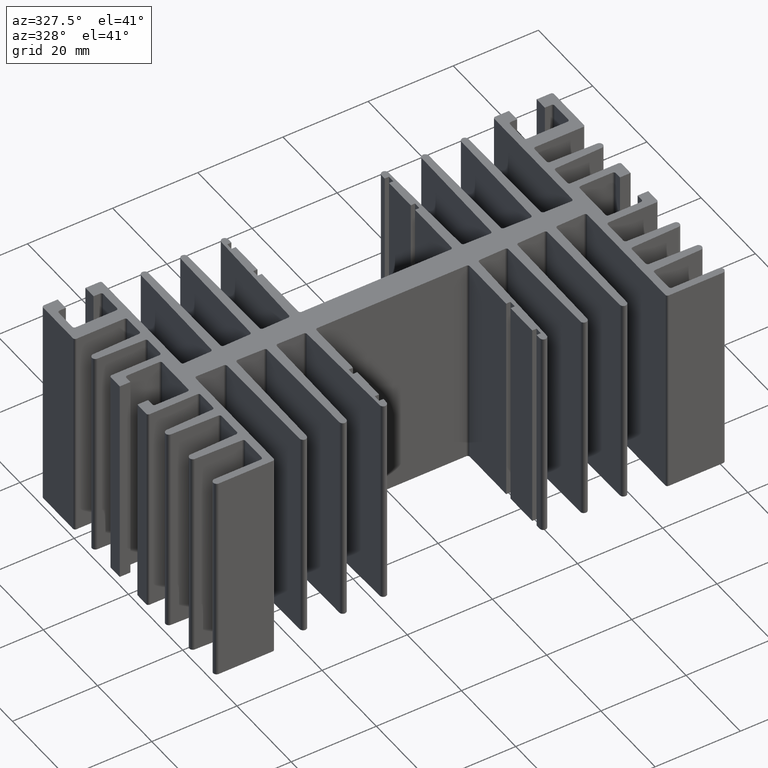
[diagram: clean part render]
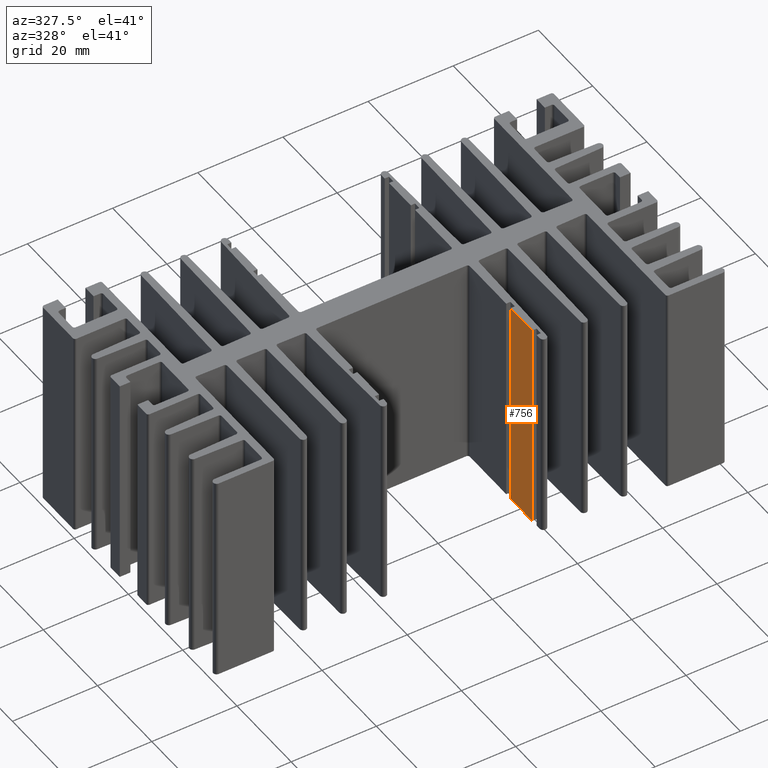
[diagram: same view with one face highlighted and labeled with its STEP entity id]
A machine part, auxiliary view. The second image highlights one B-rep face of the part: STEP entity #756.
In plain terms, the highlighted planar face has unit normal (1, 0, 0).
Its self-contained STEP definition (entity closure, byte-faithful):
#100 = VERTEX_POINT ( 'NONE', #2177 ) ;
#603 = VERTEX_POINT ( 'NONE', #2441 ) ;
#647 = DIRECTION ( 'NONE',  ( 0.0000000000000000000, -1.000000000000000000, 0.0000000000000000000 ) ) ;
#674 = EDGE_CURVE ( 'NONE', #100, #1160, #5133, .T. ) ;
#756 = ADVANCED_FACE ( 'NONE', ( #4584 ), #7160, .F. ) ;
#984 = EDGE_CURVE ( 'NONE', #1628, #100, #3856, .T. ) ;
#1018 = VECTOR ( 'NONE', #1922, 1000.000000000000000 ) ;
#1160 = VERTEX_POINT ( 'NONE', #5419 ) ;
#1380 = CARTESIAN_POINT ( 'NONE',  ( 17.99999964180505074, -18.42808179197849938, 50.00000000000000000 ) ) ;
#1489 = DIRECTION ( 'NONE',  ( 0.0000000000000000000, -1.000000000000000000, 0.0000000000000000000 ) ) ;
#1628 = VERTEX_POINT ( 'NONE', #4771 ) ;
#1684 = CARTESIAN_POINT ( 'NONE',  ( 17.99999964180505074, -18.42808179197849938, 50.00000000000000000 ) ) ;
#1922 = DIRECTION ( 'NONE',  ( 0.0000000000000000000, 0.0000000000000000000, -1.000000000000000000 ) ) ;
#2056 = EDGE_CURVE ( 'NONE', #1628, #603, #7463, .T. ) ;
#2177 = CARTESIAN_POINT ( 'NONE',  ( 17.99999964180505074, -26.42808179197850293, 50.00000000000000000 ) ) ;
#2441 = CARTESIAN_POINT ( 'NONE',  ( 17.99999964180505074, -18.42808179197849938, 0.0000000000000000000 ) ) ;
#2729 = EDGE_CURVE ( 'NONE', #603, #1160, #4684, .T. ) ;
#3285 = VECTOR ( 'NONE', #1489, 1000.000000000000000 ) ;
#3821 = ORIENTED_EDGE ( 'NONE', *, *, #674, .F. ) ;
#3856 = LINE ( 'NONE', #6421, #7328 ) ;
#3951 = DIRECTION ( 'NONE',  ( 1.000000000000000000, 0.0000000000000000000, 0.0000000000000000000 ) ) ;
#4096 = EDGE_LOOP ( 'NONE', ( #7555, #3821, #4768, #8328 ) ) ;
#4123 = AXIS2_PLACEMENT_3D ( 'NONE', #1380, #3951, #6518 ) ;
#4258 = DIRECTION ( 'NONE',  ( 0.0000000000000000000, 0.0000000000000000000, -1.000000000000000000 ) ) ;
#4584 = FACE_OUTER_BOUND ( 'NONE', #4096, .T. ) ;
#4684 = LINE ( 'NONE', #7266, #3285 ) ;
#4768 = ORIENTED_EDGE ( 'NONE', *, *, #984, .F. ) ;
#4771 = CARTESIAN_POINT ( 'NONE',  ( 17.99999964180505074, -18.42808179197849938, 50.00000000000000000 ) ) ;
#5133 = LINE ( 'NONE', #7704, #1018 ) ;
#5419 = CARTESIAN_POINT ( 'NONE',  ( 17.99999964180505074, -26.42808179197850293, 0.0000000000000000000 ) ) ;
#6421 = CARTESIAN_POINT ( 'NONE',  ( 17.99999964180505074, -18.42808179197849938, 50.00000000000000000 ) ) ;
#6518 = DIRECTION ( 'NONE',  ( 0.0000000000000000000, 1.000000000000000000, 0.0000000000000000000 ) ) ;
#7160 = PLANE ( 'NONE',  #4123 ) ;
#7266 = CARTESIAN_POINT ( 'NONE',  ( 17.99999964180505074, -18.42808179197849938, 0.0000000000000000000 ) ) ;
#7328 = VECTOR ( 'NONE', #647, 1000.000000000000000 ) ;
#7463 = LINE ( 'NONE', #1684, #7678 ) ;
#7555 = ORIENTED_EDGE ( 'NONE', *, *, #2729, .T. ) ;
#7678 = VECTOR ( 'NONE', #4258, 1000.000000000000000 ) ;
#7704 = CARTESIAN_POINT ( 'NONE',  ( 17.99999964180505074, -26.42808179197850293, 50.00000000000000000 ) ) ;
#8328 = ORIENTED_EDGE ( 'NONE', *, *, #2056, .T. ) ;